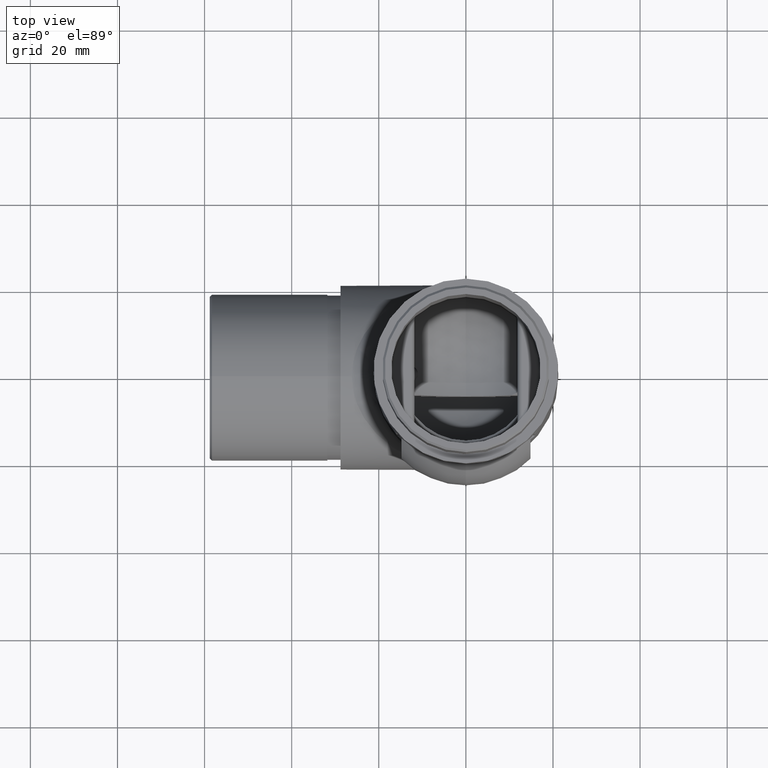
[diagram: clean part render]
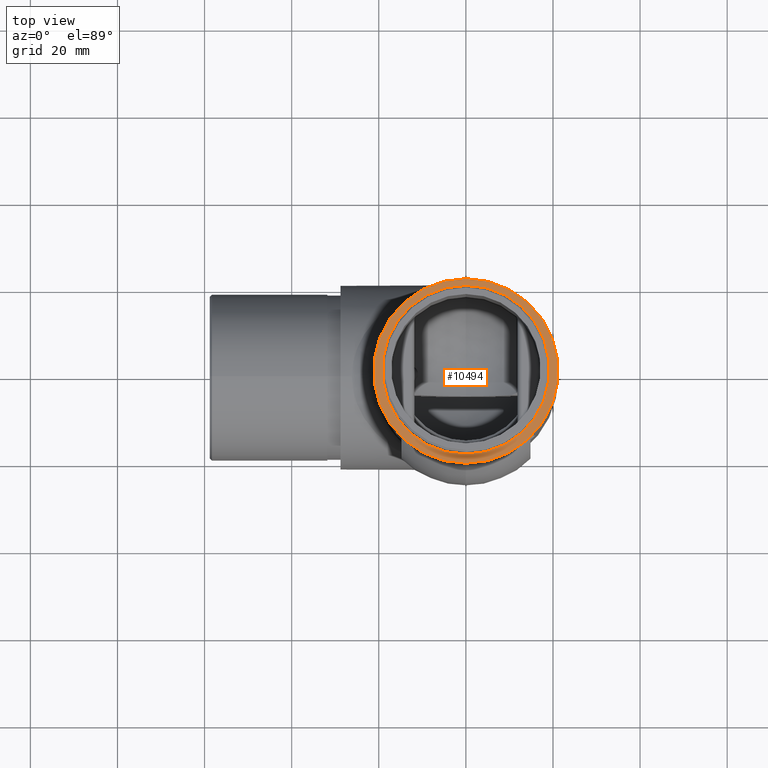
[diagram: same view with one face highlighted and labeled with its STEP entity id]
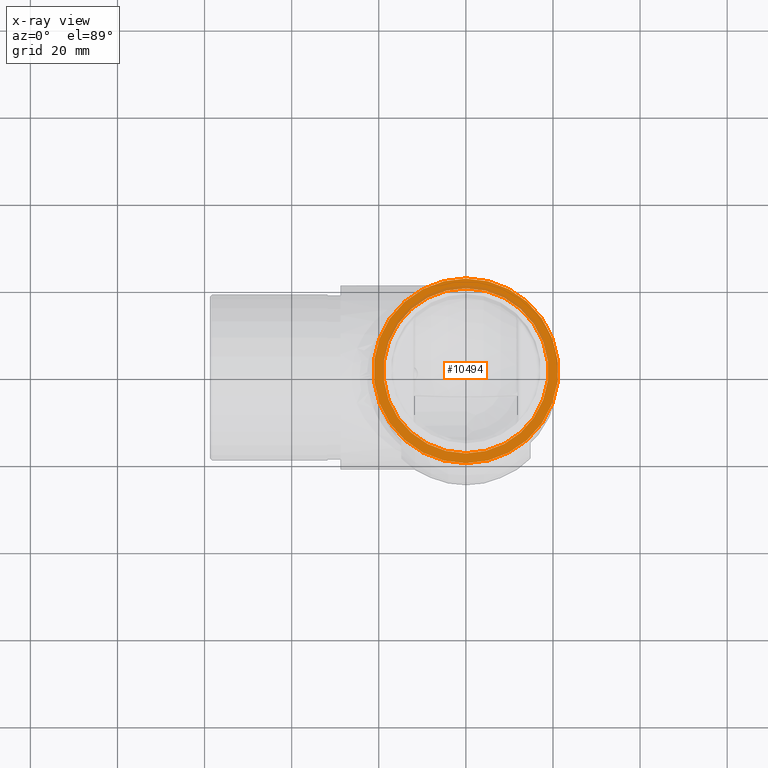
[diagram: x-ray of the same camera — body ghosted, the highlighted face saturated]
A machine part, top view. The second image highlights one B-rep face of the part: STEP entity #10494.
The next image is the same camera in x-ray: the body ghosted, the highlighted face saturated — about 12% of this face is hidden behind the body in this view.
In plain terms, the highlighted planar face has unit normal (0, 0, -1).
Its self-contained STEP definition (entity closure, byte-faithful):
#358 = CARTESIAN_POINT ( 'NONE',  ( 0.000000000000000000, 30.00000000000000000, -21.20000000000000284 ) ) ;
#1364 = EDGE_CURVE ( 'NONE', #19208, #17935, #6249, .T. ) ;
#1411 = DIRECTION ( 'NONE',  ( 0.000000000000000000, -0.000000000000000000, 1.000000000000000000 ) ) ;
#1803 = EDGE_CURVE ( 'NONE', #13256, #8130, #4109, .T. ) ;
#2177 = EDGE_LOOP ( 'NONE', ( #9201, #6957 ) ) ;
#3089 = CARTESIAN_POINT ( 'NONE',  ( 0.000000000000000000, 30.00000000000000000, 0.000000000000000000 ) ) ;
#3348 = DIRECTION ( 'NONE',  ( -0.000000000000000000, -1.000000000000000000, -0.000000000000000000 ) ) ;
#4109 = CIRCLE ( 'NONE', #21093, 18.94999999999999929 ) ;
#4387 = EDGE_LOOP ( 'NONE', ( #8155, #11341 ) ) ;
#4558 = DIRECTION ( 'NONE',  ( 0.000000000000000000, 0.000000000000000000, 1.000000000000000000 ) ) ;
#4678 = DIRECTION ( 'NONE',  ( -0.000000000000000000, -1.000000000000000000, -0.000000000000000000 ) ) ;
#4824 = CARTESIAN_POINT ( 'NONE',  ( 2.320705684384234292E-15, 30.00000000000000000, -18.94999999999999929 ) ) ;
#5011 = CARTESIAN_POINT ( 'NONE',  ( 2.596251214192389164E-15, 30.00000000000000000, 21.20000000000000284 ) ) ;
#6249 = CIRCLE ( 'NONE', #11151, 21.20000000000000284 ) ;
#6312 = CARTESIAN_POINT ( 'NONE',  ( 0.000000000000000000, 30.00000000000000000, 0.000000000000000000 ) ) ;
#6411 = CARTESIAN_POINT ( 'NONE',  ( 0.000000000000000000, 30.00000000000000000, 0.000000000000000000 ) ) ;
#6517 = PLANE ( 'NONE',  #9386 ) ;
#6535 = DIRECTION ( 'NONE',  ( -0.000000000000000000, -1.000000000000000000, -0.000000000000000000 ) ) ;
#6957 = ORIENTED_EDGE ( 'NONE', *, *, #19589, .T. ) ;
#8130 = VERTEX_POINT ( 'NONE', #4824 ) ;
#8155 = ORIENTED_EDGE ( 'NONE', *, *, #1803, .F. ) ;
#8559 = CIRCLE ( 'NONE', #18896, 18.94999999999999929 ) ;
#9201 = ORIENTED_EDGE ( 'NONE', *, *, #1364, .T. ) ;
#9386 = AXIS2_PLACEMENT_3D ( 'NONE', #9912, #18451, #1411 ) ;
#9912 = CARTESIAN_POINT ( 'NONE',  ( 0.000000000000000000, 30.00000000000000000, 0.000000000000000000 ) ) ;
#10494 = ADVANCED_FACE ( 'NONE', ( #13468, #14559 ), #6517, .F. ) ;
#11151 = AXIS2_PLACEMENT_3D ( 'NONE', #6312, #4678, #12686 ) ;
#11341 = ORIENTED_EDGE ( 'NONE', *, *, #15270, .F. ) ;
#12686 = DIRECTION ( 'NONE',  ( 0.000000000000000000, 0.000000000000000000, -1.000000000000000000 ) ) ;
#13256 = VERTEX_POINT ( 'NONE', #16295 ) ;
#13315 = CARTESIAN_POINT ( 'NONE',  ( 0.000000000000000000, 30.00000000000000000, 0.000000000000000000 ) ) ;
#13397 = DIRECTION ( 'NONE',  ( 0.000000000000000000, 0.000000000000000000, -1.000000000000000000 ) ) ;
#13468 = FACE_BOUND ( 'NONE', #4387, .T. ) ;
#13520 = DIRECTION ( 'NONE',  ( 0.000000000000000000, 0.000000000000000000, 1.000000000000000000 ) ) ;
#13912 = AXIS2_PLACEMENT_3D ( 'NONE', #13315, #3348, #13397 ) ;
#14559 = FACE_OUTER_BOUND ( 'NONE', #2177, .T. ) ;
#15270 = EDGE_CURVE ( 'NONE', #8130, #13256, #8559, .T. ) ;
#16295 = CARTESIAN_POINT ( 'NONE',  ( 0.000000000000000000, 30.00000000000000000, 18.94999999999999929 ) ) ;
#17935 = VERTEX_POINT ( 'NONE', #5011 ) ;
#18451 = DIRECTION ( 'NONE',  ( 0.000000000000000000, 1.000000000000000000, 0.000000000000000000 ) ) ;
#18896 = AXIS2_PLACEMENT_3D ( 'NONE', #3089, #6535, #13520 ) ;
#18994 = CIRCLE ( 'NONE', #13912, 21.20000000000000284 ) ;
#19208 = VERTEX_POINT ( 'NONE', #358 ) ;
#19589 = EDGE_CURVE ( 'NONE', #17935, #19208, #18994, .T. ) ;
#19893 = DIRECTION ( 'NONE',  ( -0.000000000000000000, -1.000000000000000000, -0.000000000000000000 ) ) ;
#21093 = AXIS2_PLACEMENT_3D ( 'NONE', #6411, #19893, #4558 ) ;